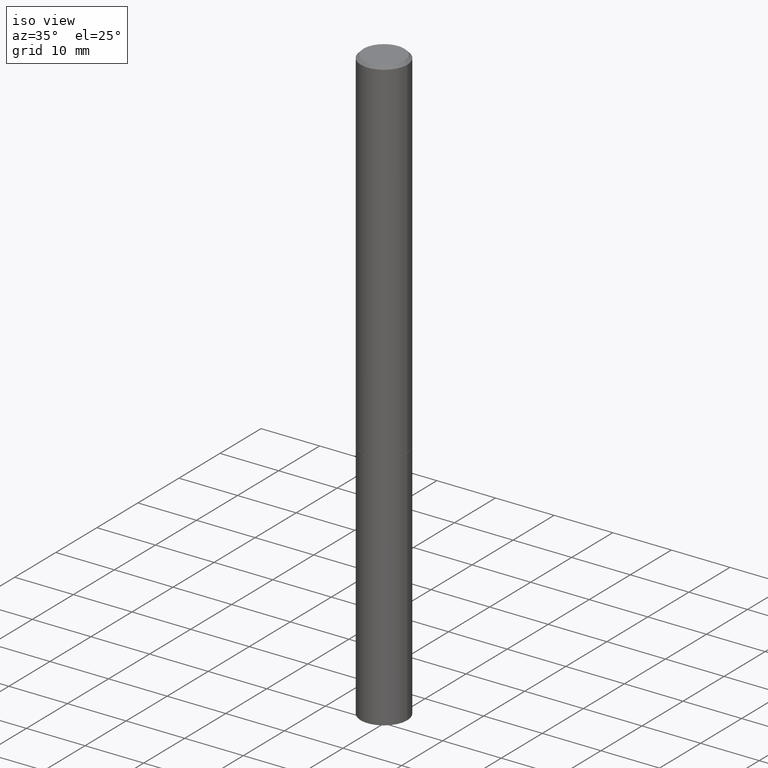
[diagram: clean part render]
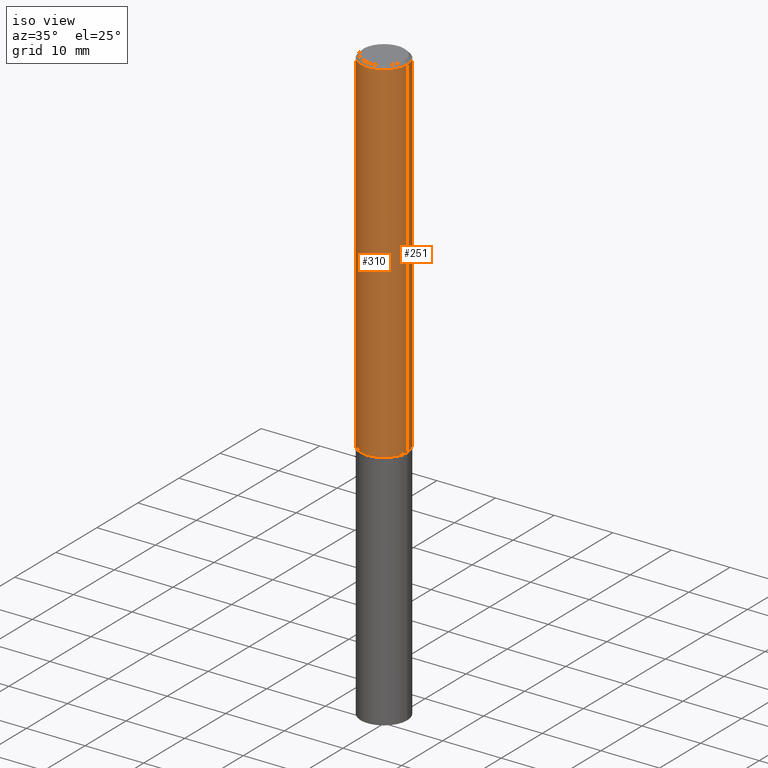
[diagram: same view with one multi-face feature highlighted, each face labeled with its STEP entity id]
A machine part, iso view. The highlighted faces form ONE feature: a constant-radius fillet chain: 2 tangent blend faces with common blend radius 3.9687 mm. The faces share edges in the B-rep.
Their STEP definitions:
[1] entity #310 (Cylinder):
#1 = ORIENTED_EDGE ( 'NONE', *, *, #15, .T. ) ;
#5 = DIRECTION ( 'NONE',  ( -2.445468806185136877E-29, 3.491481338843145188E-15, 1.000000000000000000 ) ) ;
#9 = LINE ( 'NONE', #258, #233 ) ;
#15 = EDGE_CURVE ( 'NONE', #195, #79, #173, .T. ) ;
#32 = EDGE_LOOP ( 'NONE', ( #33, #1, #168, #365 ) ) ;
#33 = ORIENTED_EDGE ( 'NONE', *, *, #136, .F. ) ;
#41 = CYLINDRICAL_SURFACE ( 'NONE', #97, 0.1562499999999998612 ) ;
#45 = AXIS2_PLACEMENT_3D ( 'NONE', #46, #130, #98 ) ;
#46 = CARTESIAN_POINT ( 'NONE',  ( 4.890937612370281041E-31, -6.982962677686302702E-17, -0.02000000000000003511 ) ) ;
#68 = CARTESIAN_POINT ( 'NONE',  ( -0.1562499999999998612, 1.110223024625155554E-15, -7.685836078523284153E-30 ) ) ;
#79 = VERTEX_POINT ( 'NONE', #128 ) ;
#95 = DIRECTION ( 'NONE',  ( -2.445468806185136877E-29, 3.491481338843145188E-15, 1.000000000000000000 ) ) ;
#97 = AXIS2_PLACEMENT_3D ( 'NONE', #229, #339, #288 ) ;
#98 = DIRECTION ( 'NONE',  ( 1.000000000000000000, -6.982962677686267499E-15, 0.000000000000000000 ) ) ;
#107 = CIRCLE ( 'NONE', #45, 0.1562499999999997224 ) ;
#108 = DIRECTION ( 'NONE',  ( -2.445468806185136597E-29, 3.491481338843145583E-15, 1.000000000000000000 ) ) ;
#128 = CARTESIAN_POINT ( 'NONE',  ( 0.1562500000000000000, -9.379864616802105495E-15, -2.373999999999999666 ) ) ;
#130 = DIRECTION ( 'NONE',  ( -2.445468806185136597E-29, 3.491481338843145583E-15, 1.000000000000000000 ) ) ;
#132 = CARTESIAN_POINT ( 'NONE',  ( -0.1562500000000000000, -3.069080137970085114E-15, -2.373999999999999666 ) ) ;
#136 = EDGE_CURVE ( 'NONE', #195, #332, #240, .T. ) ;
#165 = VECTOR ( 'NONE', #95, 39.37007874015748143 ) ;
#167 = EDGE_CURVE ( 'NONE', #332, #230, #107, .T. ) ;
#168 = ORIENTED_EDGE ( 'NONE', *, *, #352, .T. ) ;
#173 = CIRCLE ( 'NONE', #181, 0.1562500000000000000 ) ;
#181 = AXIS2_PLACEMENT_3D ( 'NONE', #359, #108, #221 ) ;
#195 = VERTEX_POINT ( 'NONE', #132 ) ;
#197 = FACE_OUTER_BOUND ( 'NONE', #32, .T. ) ;
#203 = CARTESIAN_POINT ( 'NONE',  ( -0.1562499999999997224, 1.021258291611614298E-15, -0.02000000000000003511 ) ) ;
#221 = DIRECTION ( 'NONE',  ( 1.000000000000000000, -6.982962677686262766E-15, 0.000000000000000000 ) ) ;
#229 = CARTESIAN_POINT ( 'NONE',  ( 0.000000000000000000, 0.000000000000000000, 0.000000000000000000 ) ) ;
#230 = VERTEX_POINT ( 'NONE', #299 ) ;
#233 = VECTOR ( 'NONE', #5, 39.37007874015748143 ) ;
#240 = LINE ( 'NONE', #68, #165 ) ;
#258 = CARTESIAN_POINT ( 'NONE',  ( 0.1562499999999998612, -1.091087918388478187E-15, 7.619026212181143371E-30 ) ) ;
#288 = DIRECTION ( 'NONE',  ( 1.000000000000000000, -6.982962677686266711E-15, 4.876176775795936353E-29 ) ) ;
#299 = CARTESIAN_POINT ( 'NONE',  ( 0.1562499999999997224, -1.141782438928662935E-15, -0.02000000000000003511 ) ) ;
#310 = ADVANCED_FACE ( 'NONE', ( #197 ), #41, .T. ) ;
#332 = VERTEX_POINT ( 'NONE', #203 ) ;
#339 = DIRECTION ( 'NONE',  ( -2.445468806185136597E-29, 3.491481338843145583E-15, 1.000000000000000000 ) ) ;
#352 = EDGE_CURVE ( 'NONE', #79, #230, #9, .T. ) ;
#359 = CARTESIAN_POINT ( 'NONE',  ( 5.805542945883513814E-29, -8.288776698413627111E-15, -2.373999999999999666 ) ) ;
#365 = ORIENTED_EDGE ( 'NONE', *, *, #167, .F. ) ;
[2] entity #251 (Cylinder):
#5 = DIRECTION ( 'NONE',  ( -2.445468806185136877E-29, 3.491481338843145188E-15, 1.000000000000000000 ) ) ;
#9 = LINE ( 'NONE', #258, #233 ) ;
#26 = CIRCLE ( 'NONE', #172, 0.1562499999999997224 ) ;
#37 = EDGE_CURVE ( 'NONE', #230, #332, #26, .T. ) ;
#50 = ORIENTED_EDGE ( 'NONE', *, *, #37, .F. ) ;
#52 = CYLINDRICAL_SURFACE ( 'NONE', #249, 0.1562499999999998612 ) ;
#68 = CARTESIAN_POINT ( 'NONE',  ( -0.1562499999999998612, 1.110223024625155554E-15, -7.685836078523284153E-30 ) ) ;
#77 = DIRECTION ( 'NONE',  ( -2.445468806185136597E-29, 3.491481338843145583E-15, 1.000000000000000000 ) ) ;
#79 = VERTEX_POINT ( 'NONE', #128 ) ;
#85 = DIRECTION ( 'NONE',  ( 1.000000000000000000, -6.982962677686262766E-15, 0.000000000000000000 ) ) ;
#89 = CARTESIAN_POINT ( 'NONE',  ( 5.805542945883513814E-29, -8.288776698413627111E-15, -2.373999999999999666 ) ) ;
#95 = DIRECTION ( 'NONE',  ( -2.445468806185136877E-29, 3.491481338843145188E-15, 1.000000000000000000 ) ) ;
#113 = ORIENTED_EDGE ( 'NONE', *, *, #315, .T. ) ;
#114 = DIRECTION ( 'NONE',  ( -2.445468806185136597E-29, 3.491481338843145583E-15, 1.000000000000000000 ) ) ;
#120 = ORIENTED_EDGE ( 'NONE', *, *, #352, .F. ) ;
#125 = EDGE_LOOP ( 'NONE', ( #113, #225, #50, #120 ) ) ;
#128 = CARTESIAN_POINT ( 'NONE',  ( 0.1562500000000000000, -9.379864616802105495E-15, -2.373999999999999666 ) ) ;
#132 = CARTESIAN_POINT ( 'NONE',  ( -0.1562500000000000000, -3.069080137970085114E-15, -2.373999999999999666 ) ) ;
#136 = EDGE_CURVE ( 'NONE', #195, #332, #240, .T. ) ;
#138 = DIRECTION ( 'NONE',  ( 1.000000000000000000, -6.982962677686267499E-15, 0.000000000000000000 ) ) ;
#165 = VECTOR ( 'NONE', #95, 39.37007874015748143 ) ;
#172 = AXIS2_PLACEMENT_3D ( 'NONE', #328, #77, #138 ) ;
#179 = AXIS2_PLACEMENT_3D ( 'NONE', #89, #235, #85 ) ;
#195 = VERTEX_POINT ( 'NONE', #132 ) ;
#203 = CARTESIAN_POINT ( 'NONE',  ( -0.1562499999999997224, 1.021258291611614298E-15, -0.02000000000000003511 ) ) ;
#225 = ORIENTED_EDGE ( 'NONE', *, *, #136, .T. ) ;
#230 = VERTEX_POINT ( 'NONE', #299 ) ;
#233 = VECTOR ( 'NONE', #5, 39.37007874015748143 ) ;
#235 = DIRECTION ( 'NONE',  ( -2.445468806185136597E-29, 3.491481338843145583E-15, 1.000000000000000000 ) ) ;
#240 = LINE ( 'NONE', #68, #165 ) ;
#241 = CIRCLE ( 'NONE', #179, 0.1562500000000000000 ) ;
#249 = AXIS2_PLACEMENT_3D ( 'NONE', #274, #114, #331 ) ;
#251 = ADVANCED_FACE ( 'NONE', ( #327 ), #52, .T. ) ;
#258 = CARTESIAN_POINT ( 'NONE',  ( 0.1562499999999998612, -1.091087918388478187E-15, 7.619026212181143371E-30 ) ) ;
#274 = CARTESIAN_POINT ( 'NONE',  ( 0.000000000000000000, 0.000000000000000000, 0.000000000000000000 ) ) ;
#299 = CARTESIAN_POINT ( 'NONE',  ( 0.1562499999999997224, -1.141782438928662935E-15, -0.02000000000000003511 ) ) ;
#315 = EDGE_CURVE ( 'NONE', #79, #195, #241, .T. ) ;
#327 = FACE_OUTER_BOUND ( 'NONE', #125, .T. ) ;
#328 = CARTESIAN_POINT ( 'NONE',  ( 4.890937612370281041E-31, -6.982962677686302702E-17, -0.02000000000000003511 ) ) ;
#331 = DIRECTION ( 'NONE',  ( 1.000000000000000000, -6.982962677686266711E-15, 4.876176775795936353E-29 ) ) ;
#332 = VERTEX_POINT ( 'NONE', #203 ) ;
#352 = EDGE_CURVE ( 'NONE', #79, #230, #9, .T. ) ;